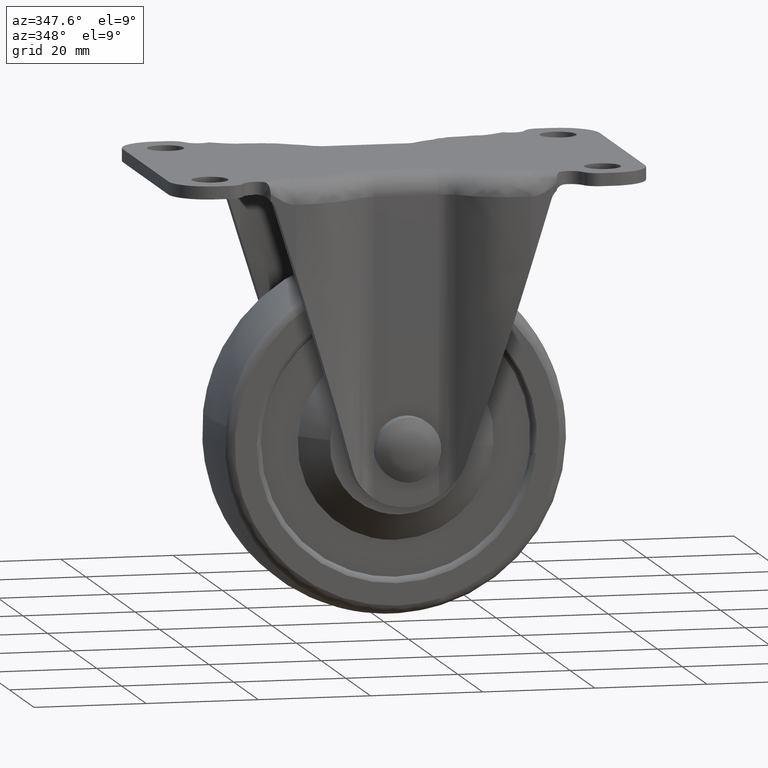
[diagram: clean part render]
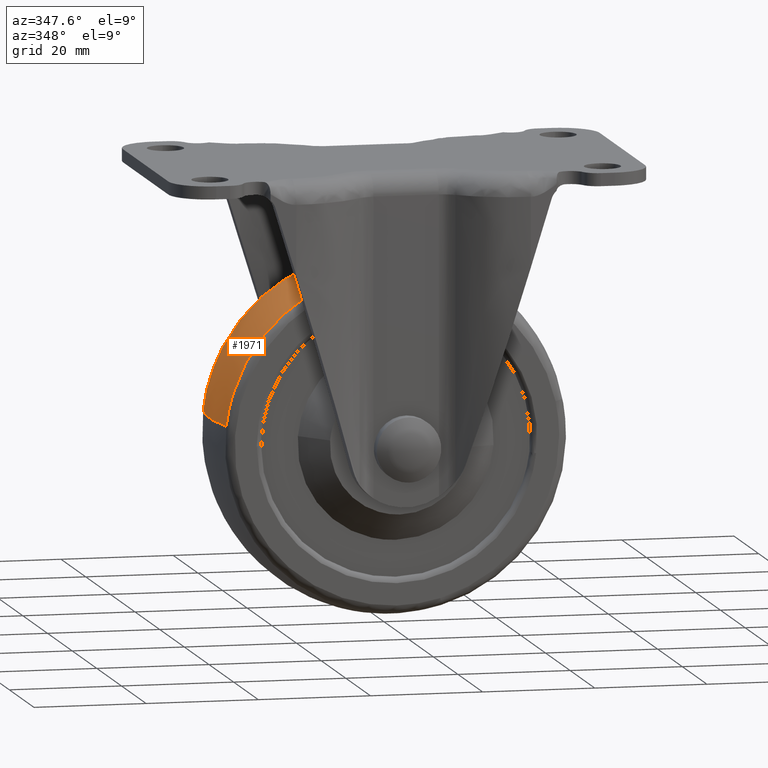
[diagram: same view with one face highlighted and labeled with its STEP entity id]
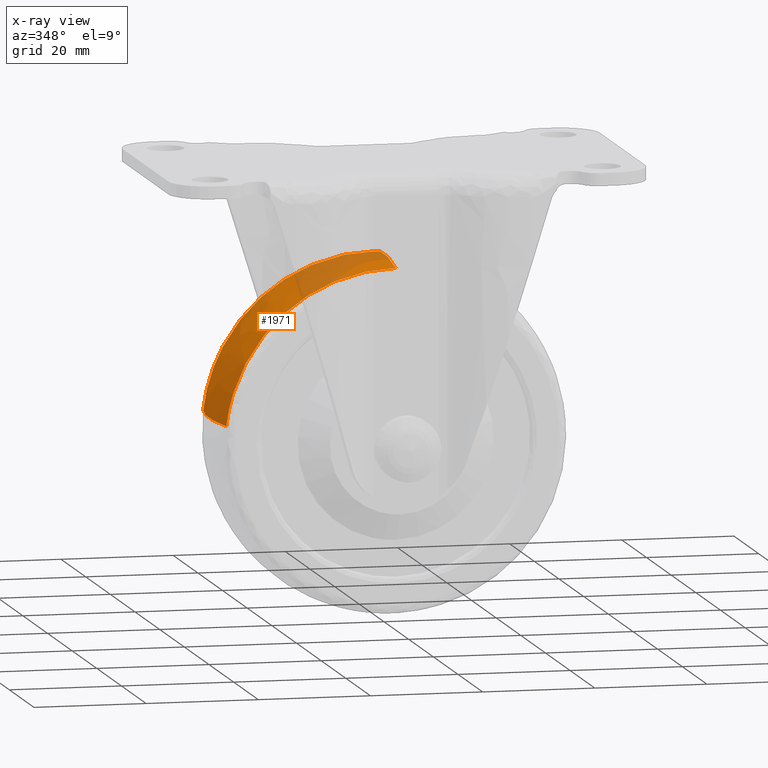
[diagram: x-ray of the same camera — body ghosted, the highlighted face saturated]
A machine part, auxiliary view. The second image highlights one B-rep face of the part: STEP entity #1971.
The next image is the same camera in x-ray: the body ghosted, the highlighted face saturated — about 25% of this face is hidden behind the body in this view.
In plain terms, the highlighted face is a freeform B-spline surface patch.
Its self-contained STEP definition (entity closure, byte-faithful):
#1341=CARTESIAN_POINT('',(0.0,-9.350639577467357,-18.108284436242730));
#1342=VERTEX_POINT('',#1341);
#1356=CARTESIAN_POINT('',(-30.188444227470679,-9.350648244138307,-44.990857173290820));
#1357=VERTEX_POINT('',#1356);
#1358=CARTESIAN_POINT('',(0.0,-9.350639577467357,-18.108284436242730));
#1359=CARTESIAN_POINT('',(-27.063580209179371,-9.350643910802832,-18.108285595755191));
#1360=CARTESIAN_POINT('',(-30.188444227470676,-9.350648244138307,-44.990857173290820));
#1368=(BOUNDED_CURVE()B_SPLINE_CURVE(2,(#1358,#1359,#1360),.UNSPECIFIED.,.F.,.U.)B_SPLINE_CURVE_WITH_KNOTS((3,3),(0.500000000000000,0.730000072552732),.UNSPECIFIED.)CURVE()GEOMETRIC_REPRESENTATION_ITEM()RATIONAL_B_SPLINE_CURVE((1.0,0.730538153690811,0.956886260992074))REPRESENTATION_ITEM(''));
#1369=EDGE_CURVE('',#1342,#1357,#1368,.T.);
#1436=CARTESIAN_POINT('',(0.0,9.350628647344419,-18.108281808346291));
#1437=VERTEX_POINT('',#1436);
#1500=CARTESIAN_POINT('',(-29.529555800368630,9.350636644921124,-41.312389619682548));
#1501=VERTEX_POINT('',#1500);
#1515=CARTESIAN_POINT('',(0.0,9.350628647344419,-18.108281808346291));
#1516=CARTESIAN_POINT('',(-23.881583928508366,9.350632436485430,-18.108283856150706));
#1517=CARTESIAN_POINT('',(-29.529555800368634,9.350636644921124,-41.312389619682548));
#1525=(BOUNDED_CURVE()B_SPLINE_CURVE(2,(#1515,#1516,#1517),.UNSPECIFIED.,.F.,.U.)B_SPLINE_CURVE_WITH_KNOTS((3,3),(0.500000000000000,0.709598322414666),.UNSPECIFIED.)CURVE()GEOMETRIC_REPRESENTATION_ITEM()RATIONAL_B_SPLINE_CURVE((1.0,0.754440290760275,0.920631806394786))REPRESENTATION_ITEM(''));
#1526=EDGE_CURVE('',#1437,#1501,#1525,.T.);
#1569=CARTESIAN_POINT('',(-30.188446843240161,9.350637235361571,-44.990856752918788));
#1570=VERTEX_POINT('',#1569);
#1586=CARTESIAN_POINT('',(-29.529555800368641,9.350636644921124,-41.312389619682556));
#1587=CARTESIAN_POINT('',(-29.972293050377896,9.350636938335581,-43.131330262070236));
#1588=CARTESIAN_POINT('',(-30.188446843240154,9.350637235361571,-44.990856752918788));
#1596=(BOUNDED_CURVE()B_SPLINE_CURVE(2,(#1586,#1587,#1588),.UNSPECIFIED.,.F.,.U.)B_SPLINE_CURVE_WITH_KNOTS((3,3),(0.709598322414665,0.730000071909690),.UNSPECIFIED.)CURVE()GEOMETRIC_REPRESENTATION_ITEM()RATIONAL_B_SPLINE_CURVE((0.920631806394784,0.936808451470530,0.956886259726412))REPRESENTATION_ITEM(''));
#1597=EDGE_CURVE('',#1501,#1570,#1596,.T.);
#1902=CARTESIAN_POINT('',(-30.188444227470676,-9.350648244138307,-44.990857173290820));
#1903=CARTESIAN_POINT('',(-31.289318123556221,-4.741004007475630,-44.862889696104411));
#1904=CARTESIAN_POINT('',(-31.289318120173956,-2.067043E-013,-44.862889667011423));
#1905=CARTESIAN_POINT('',(-31.289318116791691,4.740998266700004,-44.862889637918471));
#1906=CARTESIAN_POINT('',(-30.188446843240165,9.350637235361571,-44.990856752918788));
#1914=(BOUNDED_CURVE()B_SPLINE_CURVE(2,(#1902,#1903,#1904,#1905,#1906),.UNSPECIFIED.,.F.,.U.)B_SPLINE_CURVE_WITH_KNOTS((3,2,3),(0.409347614456109,0.500000000000000,0.590652280180762),.UNSPECIFIED.)CURVE()GEOMETRIC_REPRESENTATION_ITEM()RATIONAL_B_SPLINE_CURVE((0.893999390469218,0.918479440405938,0.956886118190660,0.918479485045113,0.893999447374406))REPRESENTATION_ITEM(''));
#1915=EDGE_CURVE('',#1357,#1570,#1914,.T.);
#1920=CARTESIAN_POINT('',(0.0,-9.350639577467357,-18.108284436242727));
#1921=CARTESIAN_POINT('',(0.0,-4.740999488044175,-16.999999999999996));
#1922=CARTESIAN_POINT('',(0.0,7.347638E-015,-17.0));
#1923=CARTESIAN_POINT('',(0.0,4.740993788285543,-17.000000000000004));
#1924=CARTESIAN_POINT('',(0.0,9.350628647344419,-18.108281808346288));
#1932=(BOUNDED_CURVE()B_SPLINE_CURVE(2,(#1920,#1921,#1922,#1923,#1924),.UNSPECIFIED.,.F.,.U.)B_SPLINE_CURVE_WITH_KNOTS((3,2,3),(0.409347697403355,0.500000000000000,0.590652197986304),.UNSPECIFIED.)CURVE()GEOMETRIC_REPRESENTATION_ITEM()RATIONAL_B_SPLINE_CURVE((0.934279867031952,0.959862890774191,1.0,0.959862937091345,0.934279926076227))REPRESENTATION_ITEM(''));
#1933=EDGE_CURVE('',#1342,#1437,#1932,.T.);
#1941=CARTESIAN_POINT('',(0.0,-10.296545308841734,-18.347947600380014));
#1942=CARTESIAN_POINT('',(0.0,-5.236504322367296,-16.999999999999996));
#1943=CARTESIAN_POINT('',(0.0,7.347638E-015,-17.0));
#1944=CARTESIAN_POINT('',(0.0,5.236499410017839,-16.999999999999996));
#1945=CARTESIAN_POINT('',(0.0,10.296535975183112,-18.347945113981847));
#1946=CARTESIAN_POINT('',(-26.850152424760733,-10.296545308841736,-18.347947600380010));
#1947=CARTESIAN_POINT('',(-28.050488576048735,-5.236504322367296,-16.999999999999996));
#1948=CARTESIAN_POINT('',(-28.050488576048732,7.347638E-015,-17.000000000000011));
#1949=CARTESIAN_POINT('',(-28.050488576048728,5.236499410017838,-17.000000000000011));
#1950=CARTESIAN_POINT('',(-26.850154638877669,10.296535975183110,-18.347945113981837));
#1951=CARTESIAN_POINT('',(-29.950384581800193,-10.296545308841738,-45.018516507048339));
#1952=CARTESIAN_POINT('',(-31.289316621730084,-5.236504322367297,-44.862876776197183));
#1953=CARTESIAN_POINT('',(-31.289316621730073,7.347638E-015,-44.862876776197176));
#1954=CARTESIAN_POINT('',(-31.289316621730077,5.236499410017839,-44.862876776197183));
#1955=CARTESIAN_POINT('',(-29.950387051568420,10.296535975183112,-45.018516219958300));
#1963=(BOUNDED_SURFACE()B_SPLINE_SURFACE(2,2,((#1941,#1946,#1951),(#1942,#1947,#1952),(#1943,#1948,#1953),(#1944,#1949,#1954),(#1945,#1950,#1955)),.UNSPECIFIED.,.F.,.F.,.U.)B_SPLINE_SURFACE_WITH_KNOTS((3,2,3),(3,3),(0.0,10.772099464774280,21.544189270388959),(0.0,47.962969624822030),.UNSPECIFIED.)GEOMETRIC_REPRESENTATION_ITEM()RATIONAL_B_SPLINE_SURFACE(((0.929313587962836,0.678899111742563,0.889247271767592),(0.955853159591811,0.698287283656025,0.914642619442085),(1.0,0.730538238691624,0.956886118190660),(0.955853199177537,0.698287312574911,0.914642657321117),(0.929313635558021,0.678899146512666,0.889247317310764)))REPRESENTATION_ITEM('')SURFACE());
#1964=ORIENTED_EDGE('',*,*,#1369,.F.);
#1965=ORIENTED_EDGE('',*,*,#1933,.T.);
#1966=ORIENTED_EDGE('',*,*,#1526,.T.);
#1967=ORIENTED_EDGE('',*,*,#1597,.T.);
#1968=ORIENTED_EDGE('',*,*,#1915,.F.);
#1969=EDGE_LOOP('',(#1964,#1965,#1966,#1967,#1968));
#1970=FACE_OUTER_BOUND('',#1969,.T.);
#1971=ADVANCED_FACE('',(#1970),#1963,.T.);